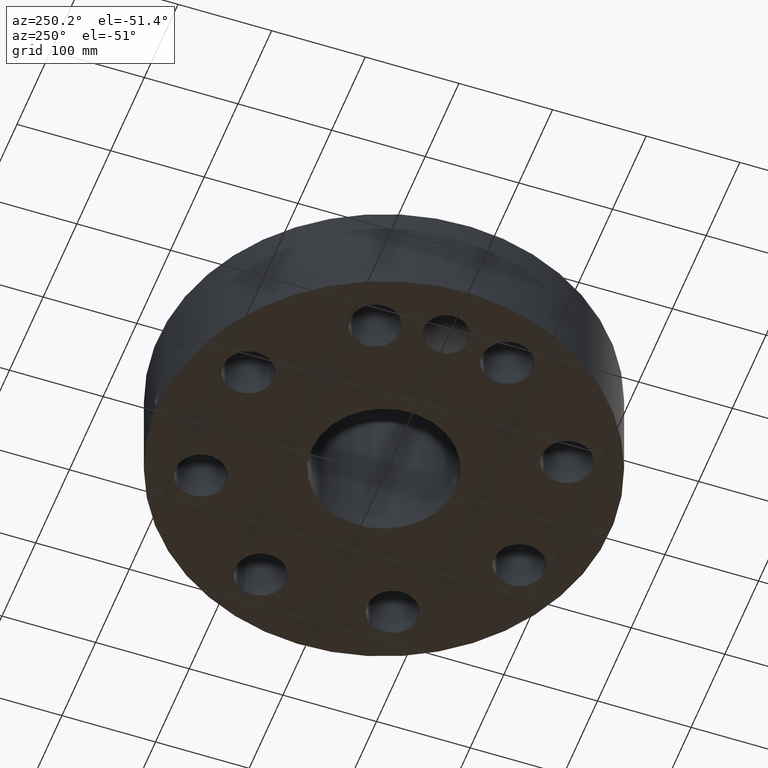
[diagram: clean part render]
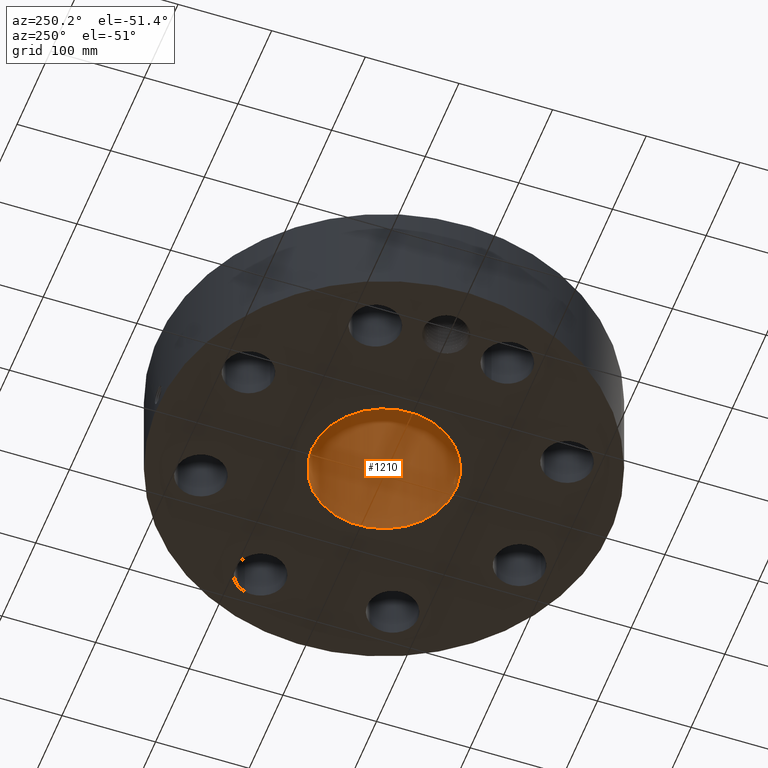
[diagram: same view with one face highlighted and labeled with its STEP entity id]
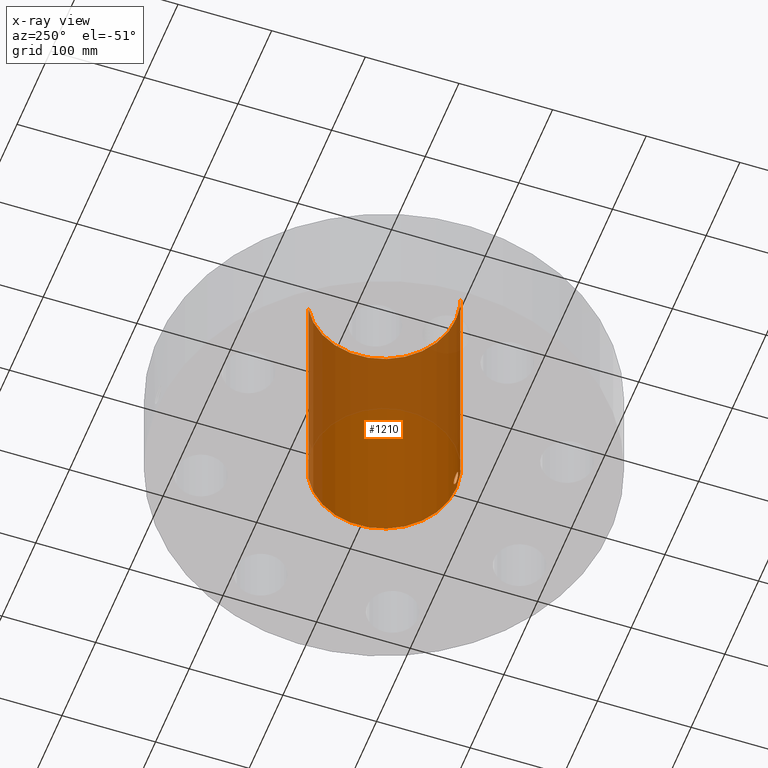
[diagram: x-ray of the same camera — body ghosted, the highlighted face saturated]
A machine part, auxiliary view. The second image highlights one B-rep face of the part: STEP entity #1210.
The next image is the same camera in x-ray: the body ghosted, the highlighted face saturated — about 44% of this face is hidden behind the body in this view.
In plain terms, the highlighted cylindrical surface (partial cylindrical patch) has radius 77.0255 mm, axis along (0, 0, -1).
Its self-contained STEP definition (entity closure, byte-faithful):
#262=AXIS2_PLACEMENT_3D('Circle Axis2P3D',#260,#261,$) ;
#1141=AXIS2_PLACEMENT_3D('Cylinder Axis2P3D',#1138,#1139,#1140) ;
#1145=AXIS2_PLACEMENT_3D('Circle Axis2P3D',#1143,#1144,$) ;
#260=CARTESIAN_POINT('Axis2P3D Location',(0.,0.,0.250000000001)) ;
#264=CARTESIAN_POINT('Vertex',(1.45385794582,2.66126911894,0.250000000001)) ;
#266=CARTESIAN_POINT('Vertex',(-1.45385794582,-2.66126911894,0.250000000001)) ;
#1138=CARTESIAN_POINT('Axis2P3D Location',(0.,0.,5.62500000002)) ;
#1143=CARTESIAN_POINT('Axis2P3D Location',(0.,0.,11.)) ;
#1147=CARTESIAN_POINT('Vertex',(1.45385794582,2.66126911894,11.)) ;
#1149=CARTESIAN_POINT('Vertex',(-1.45385794582,-2.66126911894,11.)) ;
#1152=CARTESIAN_POINT('Line Origine',(1.45385794582,2.66126911894,5.62500000002)) ;
#1157=CARTESIAN_POINT('Line Origine',(-1.45385794582,-2.66126911894,5.62500000002)) ;
#1169=CARTESIAN_POINT('Control Point',(0.219395640473,-3.02455315758,0.820143615352)) ;
#1170=CARTESIAN_POINT('Control Point',(0.206922263255,-3.0254579539,0.797311251506)) ;
#1171=CARTESIAN_POINT('Control Point',(0.19148121976,-3.02651338018,0.776106121765)) ;
#1172=CARTESIAN_POINT('Control Point',(0.173352909292,-3.02763770348,0.75703840678)) ;
#1173=CARTESIAN_POINT('Control Point',(0.112190548415,-3.03088722865,0.707588933534)) ;
#1174=CARTESIAN_POINT('Control Point',(0.0350754877838,-3.03299839928,0.684048576682)) ;
#1175=CARTESIAN_POINT('Control Point',(-0.019461246494,-3.0331580368,0.682387747524)) ;
#1176=CARTESIAN_POINT('Control Point',(-0.124017328647,-3.03084011998,0.707479192399)) ;
#1177=CARTESIAN_POINT('Control Point',(-0.203044538272,-3.02603181156,0.78027543538)) ;
#1178=CARTESIAN_POINT('Control Point',(-0.232052740186,-3.02365897928,0.826424542015)) ;
#1179=CARTESIAN_POINT('Control Point',(-0.255813742481,-3.02169783614,0.904606241803)) ;
#1180=CARTESIAN_POINT('Control Point',(-0.248329979719,-3.02231494673,0.98405916067)) ;
#1181=CARTESIAN_POINT('Control Point',(-0.242095077606,-3.02283692028,1.01069738357)) ;
#1182=CARTESIAN_POINT('Control Point',(-0.232344480057,-3.02361387207,1.03615369279)) ;
#1183=CARTESIAN_POINT('Control Point',(-0.219395640473,-3.02455315758,1.05985638466)) ;
#1184=CARTESIAN_POINT('Vertex',(0.219395640473,-3.02455315758,0.820143615352)) ;
#1186=CARTESIAN_POINT('Vertex',(-0.219395640473,-3.02455315758,1.05985638466)) ;
#1190=CARTESIAN_POINT('Control Point',(-0.219395640473,-3.02455315758,1.05985638466)) ;
#1191=CARTESIAN_POINT('Control Point',(-0.206922263255,-3.0254579539,1.0826887485)) ;
#1192=CARTESIAN_POINT('Control Point',(-0.19148121976,-3.02651338018,1.10389387824)) ;
#1193=CARTESIAN_POINT('Control Point',(-0.173352909295,-3.02763770348,1.12296159323)) ;
#1194=CARTESIAN_POINT('Control Point',(-0.112190548414,-3.03088722865,1.17241106648)) ;
#1195=CARTESIAN_POINT('Control Point',(-0.0350754877754,-3.03299839928,1.19595142333)) ;
#1196=CARTESIAN_POINT('Control Point',(0.0194612464795,-3.0331580368,1.19761225249)) ;
#1197=CARTESIAN_POINT('Control Point',(0.124017328621,-3.03084011998,1.17252080762)) ;
#1198=CARTESIAN_POINT('Control Point',(0.203044538243,-3.02603181156,1.09972456466)) ;
#1199=CARTESIAN_POINT('Control Point',(0.232052740195,-3.02365897928,1.05357545796)) ;
#1200=CARTESIAN_POINT('Control Point',(0.255813742479,-3.02169783615,0.975393758188)) ;
#1201=CARTESIAN_POINT('Control Point',(0.248329979719,-3.02231494673,0.895940839339)) ;
#1202=CARTESIAN_POINT('Control Point',(0.242095077606,-3.02283692028,0.869302616438)) ;
#1203=CARTESIAN_POINT('Control Point',(0.232344480057,-3.02361387207,0.84384630722)) ;
#1204=CARTESIAN_POINT('Control Point',(0.219395640473,-3.02455315758,0.820143615352)) ;
#261=DIRECTION('Axis2P3D Direction',(0.,0.,-0.0393700787402)) ;
#1139=DIRECTION('Axis2P3D Direction',(0.,0.,-0.0393700787402)) ;
#1140=DIRECTION('Axis2P3D XDirection',(-0.0188750212049,-0.0345504945626,0.)) ;
#1144=DIRECTION('Axis2P3D Direction',(0.,0.,-0.0393700787402)) ;
#1153=DIRECTION('Vector Direction',(0.,0.,-0.0393700787402)) ;
#1158=DIRECTION('Vector Direction',(0.,0.,-0.0393700787402)) ;
#1154=VECTOR('Line Direction',#1153,0.0393700787402) ;
#1159=VECTOR('Line Direction',#1158,0.0393700787402) ;
#1163=ORIENTED_EDGE('',*,*,#1151,.F.) ;
#1164=ORIENTED_EDGE('',*,*,#1156,.T.) ;
#1165=ORIENTED_EDGE('',*,*,#268,.T.) ;
#1166=ORIENTED_EDGE('',*,*,#1161,.F.) ;
#1207=ORIENTED_EDGE('',*,*,#1188,.F.) ;
#1208=ORIENTED_EDGE('',*,*,#1205,.F.) ;
#1209=FACE_BOUND('',#1206,.T.) ;
#1210=ADVANCED_FACE('PartBody',(#1167,#1209),#1142,.F.) ;
#1168=B_SPLINE_CURVE_WITH_KNOTS('',5,(#1169,#1170,#1171,#1172,#1173,#1174,#1175,#1176,#1177,#1178,#1179,#1180,#1181,#1182,#1183),.UNSPECIFIED.,.F.,.U.,(6,3,3,3,6),(0.,4.6756723821,14.0201641479,23.3700567079,28.2239571842),.UNSPECIFIED.) ;
#1189=B_SPLINE_CURVE_WITH_KNOTS('',5,(#1190,#1191,#1192,#1193,#1194,#1195,#1196,#1197,#1198,#1199,#1200,#1201,#1202,#1203,#1204),.UNSPECIFIED.,.F.,.U.,(6,3,3,3,6),(0.,4.67567238218,14.020164149,23.3700567058,28.2239571822),.UNSPECIFIED.) ;
#263=CIRCLE('generated circle',#262,3.03250000001) ;
#1146=CIRCLE('generated circle',#1145,3.03250000001) ;
#1142=CYLINDRICAL_SURFACE('generated cylinder',#1141,3.03250000001) ;
#268=EDGE_CURVE('',#265,#267,#263,.T.) ;
#1151=EDGE_CURVE('',#1148,#1150,#1146,.T.) ;
#1156=EDGE_CURVE('',#1148,#265,#1155,.T.) ;
#1161=EDGE_CURVE('',#1150,#267,#1160,.T.) ;
#1188=EDGE_CURVE('',#1185,#1187,#1168,.T.) ;
#1205=EDGE_CURVE('',#1187,#1185,#1189,.T.) ;
#1162=EDGE_LOOP('',(#1163,#1164,#1165,#1166)) ;
#1206=EDGE_LOOP('',(#1207,#1208)) ;
#1167=FACE_OUTER_BOUND('',#1162,.T.) ;
#1155=LINE('Line',#1152,#1154) ;
#1160=LINE('Line',#1157,#1159) ;
#265=VERTEX_POINT('',#264) ;
#267=VERTEX_POINT('',#266) ;
#1148=VERTEX_POINT('',#1147) ;
#1150=VERTEX_POINT('',#1149) ;
#1185=VERTEX_POINT('',#1184) ;
#1187=VERTEX_POINT('',#1186) ;